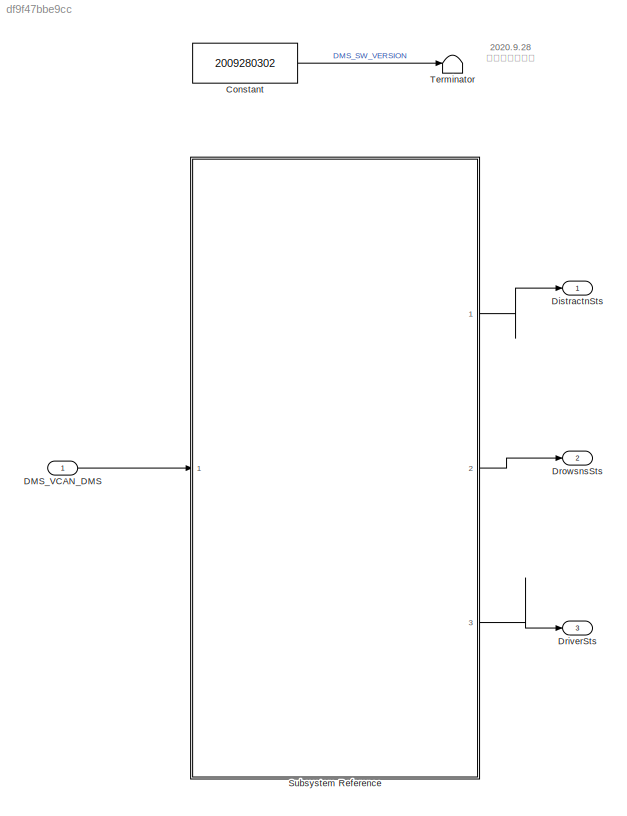
MODEL slx_df9f47bbe9cc
KIND model
CONFIG AbsTol = auto
CONFIG EnableMultiTasking = off
CONFIG FixedStep = auto
CONFIG MaxStep = auto
CONFIG MinStep = auto
CONFIG RelTol = 1e-3
CONFIG SampleTimeConstraint = Unconstrained
CONFIG SolverName = FixedStepAuto
CONFIG StartTime = 0.0
CONFIG StopTime = 10.0
BLOCK [Constant] Constant
  OutDataTypeStr = uint32
  Value = 2009280302
BLOCK [Inport] DMS_VCAN_DMS
  BusOutputAsStruct = on
  OutDataTypeStr = Bus: VCAN_DMS_MSG_BUS
  PortDimensions = 1
BLOCK [Outport] DistractnSts
  BusOutputAsStruct = on
  OutDataTypeStr = uint8
  PortDimensions = 1
BLOCK [Outport] DriverSts
  BusOutputAsStruct = on
  OutDataTypeStr = uint8
  Port = 3
  PortDimensions = 1
BLOCK [Outport] DrowsnsSts
  BusOutputAsStruct = on
  OutDataTypeStr = uint8
  Port = 2
  PortDimensions = 1
BLOCK [SubSystem] Subsystem Reference
  Ports = [1, 3]
  ReferencedSubsystem = PvtSubSys_DMS
  RequestExecContextInheritance = off
BLOCK [Terminator] Terminator
ANNOTATION (root): 2020.9.28 计时器模块更新
LINE Constant:1 -> Terminator:1
LINE DMS_VCAN_DMS:1 -> Subsystem Reference:1
LINE Subsystem Reference:1 -> DistractnSts:1
LINE Subsystem Reference:2 -> DrowsnsSts:1
LINE Subsystem Reference:3 -> DriverSts:1
